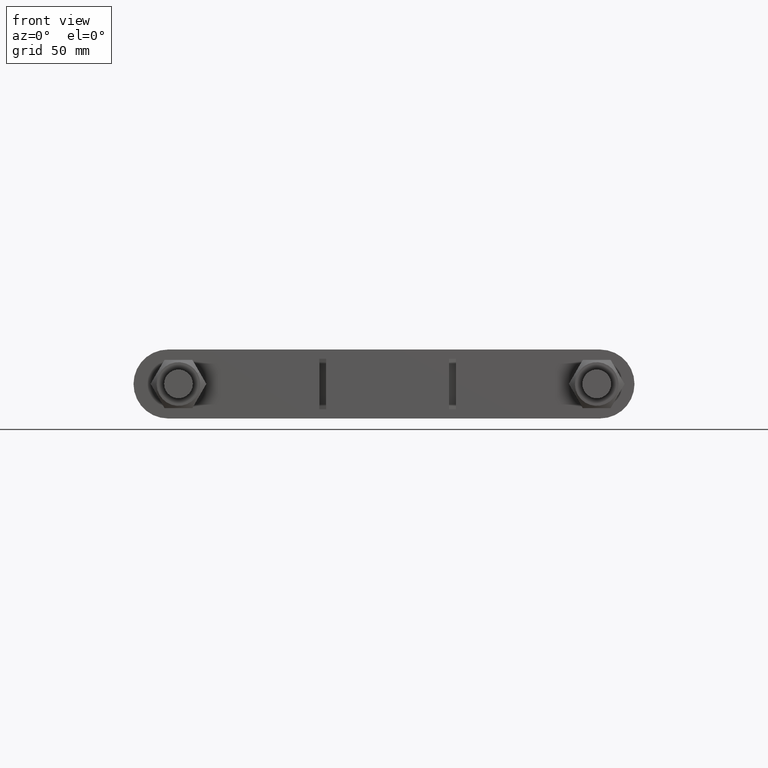
[diagram: clean part render]
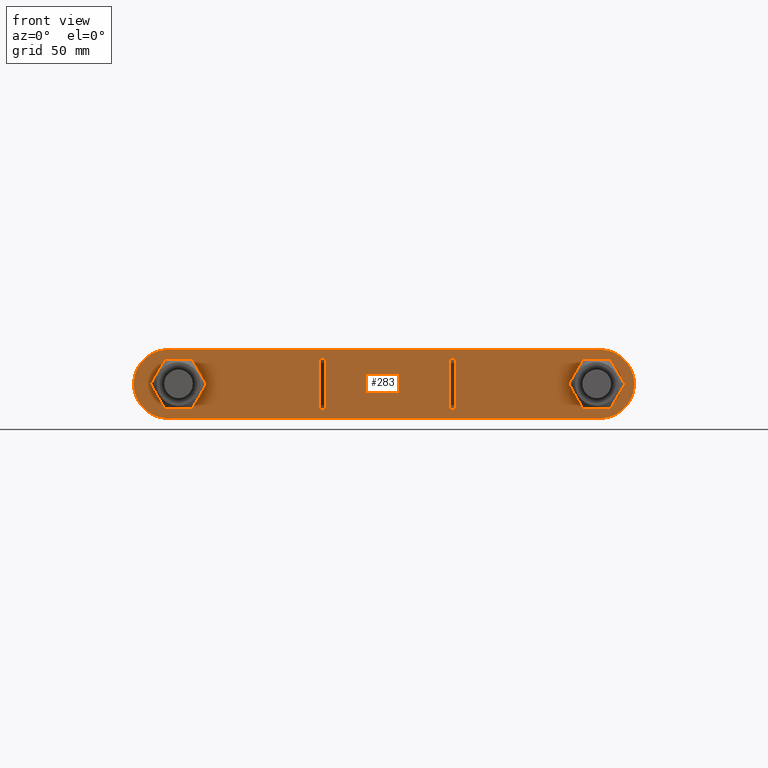
[diagram: same view with one face highlighted and labeled with its STEP entity id]
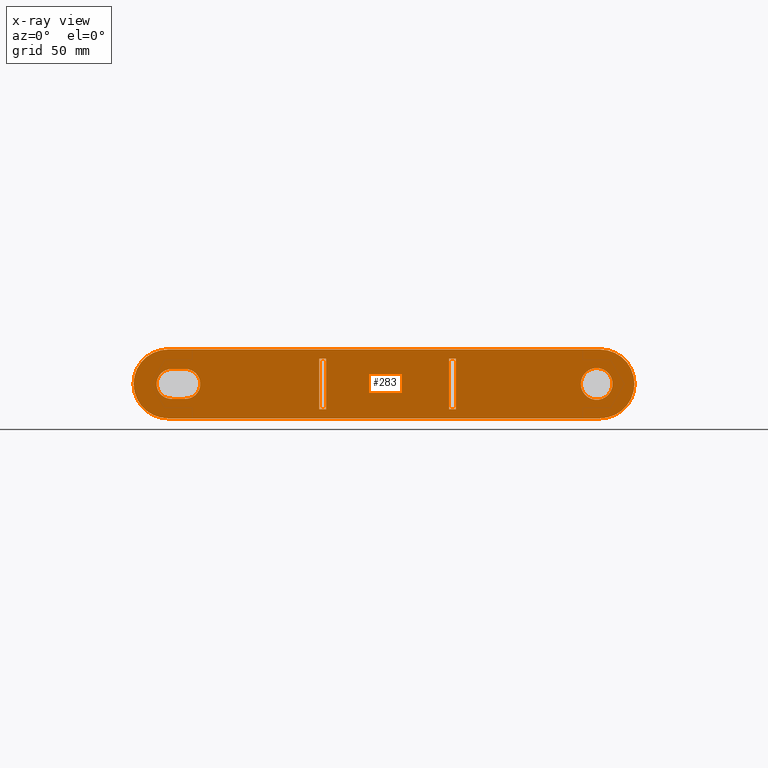
[diagram: x-ray of the same camera — body ghosted, the highlighted face saturated]
A machine part, front view. The second image highlights one B-rep face of the part: STEP entity #283.
The next image is the same camera in x-ray: the body ghosted, the highlighted face saturated — about 0% of this face is hidden behind the body in this view.
In plain terms, the highlighted planar face has unit normal (0, 1, 0).
Its self-contained STEP definition (entity closure, byte-faithful):
#283 = ADVANCED_FACE( '', ( #387, #388, #389, #390, #391 ), #392, .F. );
#387 = FACE_BOUND( '', #1473, .T. );
#388 = FACE_OUTER_BOUND( '', #1474, .T. );
#389 = FACE_BOUND( '', #1475, .T. );
#390 = FACE_BOUND( '', #1476, .T. );
#391 = FACE_BOUND( '', #1477, .T. );
#392 = PLANE( '', #1478 );
#1473 = EDGE_LOOP( '', ( #1744, #1745, #1746, #1747 ) );
#1474 = EDGE_LOOP( '', ( #1748, #1749, #1750, #1751, #1752, #1753 ) );
#1475 = EDGE_LOOP( '', ( #1754 ) );
#1476 = EDGE_LOOP( '', ( #1755, #1756, #1757, #1758 ) );
#1477 = EDGE_LOOP( '', ( #1759, #1760, #1761, #1762 ) );
#1478 = AXIS2_PLACEMENT_3D( '', #1763, #1764, #1765 );
#1744 = ORIENTED_EDGE( '', *, *, #2231, .F. );
#1745 = ORIENTED_EDGE( '', *, *, #2232, .T. );
#1746 = ORIENTED_EDGE( '', *, *, #2233, .T. );
#1747 = ORIENTED_EDGE( '', *, *, #2234, .F. );
#1748 = ORIENTED_EDGE( '', *, *, #2235, .F. );
#1749 = ORIENTED_EDGE( '', *, *, #2236, .F. );
#1750 = ORIENTED_EDGE( '', *, *, #2237, .F. );
#1751 = ORIENTED_EDGE( '', *, *, #2238, .F. );
#1752 = ORIENTED_EDGE( '', *, *, #2239, .F. );
#1753 = ORIENTED_EDGE( '', *, *, #2240, .F. );
#1754 = ORIENTED_EDGE( '', *, *, #2241, .T. );
#1755 = ORIENTED_EDGE( '', *, *, #2242, .F. );
#1756 = ORIENTED_EDGE( '', *, *, #2243, .F. );
#1757 = ORIENTED_EDGE( '', *, *, #2244, .F. );
#1758 = ORIENTED_EDGE( '', *, *, #2245, .F. );
#1759 = ORIENTED_EDGE( '', *, *, #2246, .T. );
#1760 = ORIENTED_EDGE( '', *, *, #2247, .T. );
#1761 = ORIENTED_EDGE( '', *, *, #2248, .F. );
#1762 = ORIENTED_EDGE( '', *, *, #2249, .F. );
#1763 = CARTESIAN_POINT( '', ( -95.5500000000000, 47.0000000000003, 7.48946621563771E-010 ) );
#1764 = DIRECTION( '', ( 2.44484870126044E-016, 1.00000000000000, 5.38325119430397E-017 ) );
#1765 = DIRECTION( '', ( 7.83837578177664E-012, -5.38325119449561E-017, 1.00000000000000 ) );
#2231 = EDGE_CURVE( '', #2433, #2434, #2435, .T. );
#2232 = EDGE_CURVE( '', #2433, #2436, #2437, .T. );
#2233 = EDGE_CURVE( '', #2436, #2438, #2439, .T. );
#2234 = EDGE_CURVE( '', #2434, #2438, #2440, .T. );
#2235 = EDGE_CURVE( '', #2441, #2442, #2443, .T. );
#2236 = EDGE_CURVE( '', #2444, #2441, #2445, .T. );
#2237 = EDGE_CURVE( '', #2446, #2444, #2447, .T. );
#2238 = EDGE_CURVE( '', #2448, #2446, #2449, .T. );
#2239 = EDGE_CURVE( '', #2450, #2448, #2451, .T. );
#2240 = EDGE_CURVE( '', #2442, #2450, #2452, .T. );
#2241 = EDGE_CURVE( '', #2453, #2453, #2454, .T. );
#2242 = EDGE_CURVE( '', #2455, #2456, #2457, .T. );
#2243 = EDGE_CURVE( '', #2458, #2455, #2459, .T. );
#2244 = EDGE_CURVE( '', #2460, #2458, #2461, .T. );
#2245 = EDGE_CURVE( '', #2456, #2460, #2462, .T. );
#2246 = EDGE_CURVE( '', #2463, #2464, #2465, .T. );
#2247 = EDGE_CURVE( '', #2464, #2466, #2467, .T. );
#2248 = EDGE_CURVE( '', #2468, #2466, #2469, .T. );
#2249 = EDGE_CURVE( '', #2463, #2468, #2470, .T. );
#2433 = VERTEX_POINT( '', #2927 );
#2434 = VERTEX_POINT( '', #2928 );
#2435 = LINE( '', #2929, #2930 );
#2436 = VERTEX_POINT( '', #2931 );
#2437 = LINE( '', #2932, #2933 );
#2438 = VERTEX_POINT( '', #2934 );
#2439 = LINE( '', #2935, #2936 );
#2440 = LINE( '', #2937, #2938 );
#2441 = VERTEX_POINT( '', #2939 );
#2442 = VERTEX_POINT( '', #2940 );
#2443 = CIRCLE( '', #2941, 15.0000000000000 );
#2444 = VERTEX_POINT( '', #2942 );
#2445 = CIRCLE( '', #2943, 15.0000000000000 );
#2446 = VERTEX_POINT( '', #2944 );
#2447 = LINE( '', #2945, #2946 );
#2448 = VERTEX_POINT( '', #2947 );
#2449 = CIRCLE( '', #2948, 15.0000000000000 );
#2450 = VERTEX_POINT( '', #2949 );
#2451 = CIRCLE( '', #2950, 15.0000000000000 );
#2452 = LINE( '', #2951, #2952 );
#2453 = VERTEX_POINT( '', #2953 );
#2454 = CIRCLE( '', #2954, 6.90000000000000 );
#2455 = VERTEX_POINT( '', #2955 );
#2456 = VERTEX_POINT( '', #2956 );
#2457 = CIRCLE( '', #2957, 6.50000000000000 );
#2458 = VERTEX_POINT( '', #2958 );
#2459 = LINE( '', #2959, #2960 );
#2460 = VERTEX_POINT( '', #2961 );
#2461 = CIRCLE( '', #2962, 6.50000000000000 );
#2462 = LINE( '', #2963, #2964 );
#2463 = VERTEX_POINT( '', #2965 );
#2464 = VERTEX_POINT( '', #2966 );
#2465 = LINE( '', #2967, #2968 );
#2466 = VERTEX_POINT( '', #2969 );
#2467 = LINE( '', #2970, #2971 );
#2468 = VERTEX_POINT( '', #2972 );
#2469 = LINE( '', #2973, #2974 );
#2470 = LINE( '', #2975, #2976 );
#2927 = CARTESIAN_POINT( '', ( -29.7500000000862, 47.0000000000003, -10.9999999997668 ) );
#2928 = CARTESIAN_POINT( '', ( -26.7500000000862, 47.0000000000003, -10.9999999997903 ) );
#2929 = CARTESIAN_POINT( '', ( -29.7500000000862, 47.0000000000003, -10.9999999997668 ) );
#2930 = VECTOR( '', #3407, 1000.00000000000 );
#2931 = CARTESIAN_POINT( '', ( -29.7499999999138, 47.0000000000003, 11.0000000002332 ) );
#2932 = CARTESIAN_POINT( '', ( -29.7500000000862, 47.0000000000003, -10.9999999997668 ) );
#2933 = VECTOR( '', #3408, 1000.00000000000 );
#2934 = CARTESIAN_POINT( '', ( -26.7499999999138, 47.0000000000003, 11.0000000002097 ) );
#2935 = CARTESIAN_POINT( '', ( -29.7499999999138, 47.0000000000003, 11.0000000002332 ) );
#2936 = VECTOR( '', #3409, 1000.00000000000 );
#2937 = CARTESIAN_POINT( '', ( -26.7500000000862, 47.0000000000003, -10.9999999997903 ) );
#2938 = VECTOR( '', #3410, 1000.00000000000 );
#2939 = CARTESIAN_POINT( '', ( -110.550000000000, 47.0000000000003, 8.66537870801704E-010 ) );
#2940 = CARTESIAN_POINT( '', ( -95.5499999998825, 47.0000000000003, 15.0000000007489 ) );
#2941 = AXIS2_PLACEMENT_3D( '', #3411, #3412, #3413 );
#2942 = CARTESIAN_POINT( '', ( -95.5500000001176, 47.0000000000003, -14.9999999992510 ) );
#2943 = AXIS2_PLACEMENT_3D( '', #3414, #3415, #3416 );
#2944 = CARTESIAN_POINT( '', ( 92.4499999998824, 47.0000000000003, -15.0000000007246 ) );
#2945 = CARTESIAN_POINT( '', ( 92.4499999998824, 47.0000000000003, -15.0000000007247 ) );
#2946 = VECTOR( '', #3417, 1000.00000000000 );
#2947 = CARTESIAN_POINT( '', ( 107.450000000000, 47.0000000000003, -8.42241927413412E-010 ) );
#2948 = AXIS2_PLACEMENT_3D( '', #3418, #3419, #3420 );
#2949 = CARTESIAN_POINT( '', ( 92.4500000001176, 47.0000000000003, 14.9999999992753 ) );
#2950 = AXIS2_PLACEMENT_3D( '', #3421, #3422, #3423 );
#2951 = CARTESIAN_POINT( '', ( -95.5499999998825, 47.0000000000003, 15.0000000007489 ) );
#2952 = VECTOR( '', #3424, 1000.00000000000 );
#2953 = CARTESIAN_POINT( '', ( 97.9000000000000, 47.0000000000003, -7.67385438697445E-010 ) );
#2954 = AXIS2_PLACEMENT_3D( '', #3425, #3426, #3427 );
#2955 = CARTESIAN_POINT( '', ( -93.9999999999491, 46.9999982000074, 6.50000000073679 ) );
#2956 = CARTESIAN_POINT( '', ( -94.0000000000510, 46.9999982000074, -6.49999999926320 ) );
#2957 = AXIS2_PLACEMENT_3D( '', #3428, #3429, #3430 );
#2958 = CARTESIAN_POINT( '', ( -87.9999999999491, 46.9999982000074, 6.50000000068976 ) );
#2959 = CARTESIAN_POINT( '', ( -87.9999999999491, 46.9999982000074, 6.50000000068976 ) );
#2960 = VECTOR( '', #3431, 1000.00000000000 );
#2961 = CARTESIAN_POINT( '', ( -88.0000000000510, 46.9999982000074, -6.49999999931023 ) );
#2962 = AXIS2_PLACEMENT_3D( '', #3432, #3433, #3434 );
#2963 = CARTESIAN_POINT( '', ( -94.0000000000510, 46.9999982000074, -6.49999999926320 ) );
#2964 = VECTOR( '', #3435, 1000.00000000000 );
#2965 = CARTESIAN_POINT( '', ( 29.7499999999137, 47.0000000000003, -11.0000000002332 ) );
#2966 = CARTESIAN_POINT( '', ( 26.7499999999137, 47.0000000000003, -11.0000000002097 ) );
#2967 = CARTESIAN_POINT( '', ( 29.7499999999137, 47.0000000000003, -11.0000000002332 ) );
#2968 = VECTOR( '', #3436, 1000.00000000000 );
#2969 = CARTESIAN_POINT( '', ( 26.7500000000862, 47.0000000000003, 10.9999999997903 ) );
#2970 = CARTESIAN_POINT( '', ( 26.7499999999137, 47.0000000000003, -11.0000000002097 ) );
#2971 = VECTOR( '', #3437, 1000.00000000000 );
#2972 = CARTESIAN_POINT( '', ( 29.7500000000862, 47.0000000000003, 10.9999999997668 ) );
#2973 = CARTESIAN_POINT( '', ( 29.7500000000862, 47.0000000000003, 10.9999999997668 ) );
#2974 = VECTOR( '', #3438, 1000.00000000000 );
#2975 = CARTESIAN_POINT( '', ( 29.7499999999137, 47.0000000000003, -11.0000000002332 ) );
#2976 = VECTOR( '', #3439, 1000.00000000000 );
#3407 = DIRECTION( '', ( 1.00000000000000, -3.05922993233134E-016, -7.83837578177664E-012 ) );
#3408 = DIRECTION( '', ( 7.83811591570821E-012, 1.06919704269028E-016, 1.00000000000000 ) );
#3409 = DIRECTION( '', ( 1.00000000000000, -3.05922993233134E-016, -7.83837578177664E-012 ) );
#3410 = DIRECTION( '', ( 7.83811591570821E-012, 1.06919704269028E-016, 1.00000000000000 ) );
#3411 = CARTESIAN_POINT( '', ( -95.5500000000000, 47.0000000000003, 7.48946621563771E-010 ) );
#3412 = DIRECTION( '', ( 2.44484870126044E-016, 1.00000000000000, 5.38325119430397E-017 ) );
#3413 = DIRECTION( '', ( -1.00000000000000, 2.44484870125622E-016, 7.83837578177664E-012 ) );
#3414 = CARTESIAN_POINT( '', ( -95.5500000000001, 47.0000000000003, 7.48963968798531E-010 ) );
#3415 = DIRECTION( '', ( 2.44484870126044E-016, 1.00000000000000, 5.38325119430397E-017 ) );
#3416 = DIRECTION( '', ( -7.83837578177664E-012, 5.38325119449561E-017, -1.00000000000000 ) );
#3417 = DIRECTION( '', ( -1.00000000000000, 2.44484870125622E-016, 7.83837578177664E-012 ) );
#3418 = CARTESIAN_POINT( '', ( 92.4500000000000, 47.0000000000003, -7.24650678175478E-010 ) );
#3419 = DIRECTION( '', ( 2.44484870126044E-016, 1.00000000000000, 5.38325119430397E-017 ) );
#3420 = DIRECTION( '', ( 1.00000000000000, -2.44484870125622E-016, -7.83837578177664E-012 ) );
#3421 = CARTESIAN_POINT( '', ( 92.4500000000000, 47.0000000000003, -7.24668025410238E-010 ) );
#3422 = DIRECTION( '', ( 2.44484870126044E-016, 1.00000000000000, 5.38325119430397E-017 ) );
#3423 = DIRECTION( '', ( 7.83837578177664E-012, -5.38325119449561E-017, 1.00000000000000 ) );
#3424 = DIRECTION( '', ( 1.00000000000000, -2.44484870125622E-016, -7.83837578177664E-012 ) );
#3425 = CARTESIAN_POINT( '', ( 91.0000000000000, 47.0000000000003, -7.13300645803186E-010 ) );
#3426 = DIRECTION( '', ( 2.44484870126044E-016, 1.00000000000000, 5.38325119430397E-017 ) );
#3427 = DIRECTION( '', ( 1.00000000000000, -2.44484870125622E-016, -7.83837578177664E-012 ) );
#3428 = CARTESIAN_POINT( '', ( -94.0000000000000, 46.9999982000074, 7.36795404378444E-010 ) );
#3429 = DIRECTION( '', ( -2.44484870126044E-016, -1.00000000000000, -5.38325119430397E-017 ) );
#3430 = DIRECTION( '', ( 7.83837578177664E-012, -5.38325119449561E-017, 1.00000000000000 ) );
#3431 = DIRECTION( '', ( -1.00000000000000, 2.44484870125622E-016, 7.83837578177664E-012 ) );
#3432 = CARTESIAN_POINT( '', ( -88.0000000000001, 46.9999982000074, 6.89765149687784E-010 ) );
#3433 = DIRECTION( '', ( -2.44484870126044E-016, -1.00000000000000, -5.38325119430397E-017 ) );
#3434 = DIRECTION( '', ( -7.83837578177664E-012, 5.38325119449561E-017, -1.00000000000000 ) );
#3435 = DIRECTION( '', ( 1.00000000000000, -2.44484870125622E-016, -7.83837578177664E-012 ) );
#3436 = DIRECTION( '', ( -1.00000000000000, 3.05507382400347E-016, 7.83837578177664E-012 ) );
#3437 = DIRECTION( '', ( 7.83863564784507E-012, 1.06919704269028E-016, 1.00000000000000 ) );
#3438 = DIRECTION( '', ( -1.00000000000000, 3.05507382400347E-016, 7.83837578177664E-012 ) );
#3439 = DIRECTION( '', ( 7.83863564784507E-012, 1.06919704269028E-016, 1.00000000000000 ) );